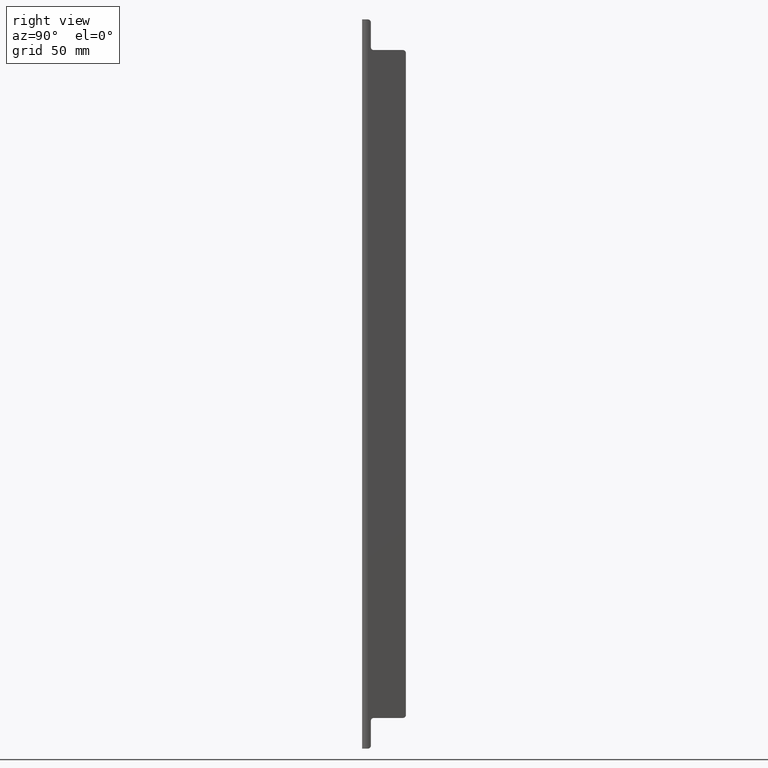
[diagram: clean part render]
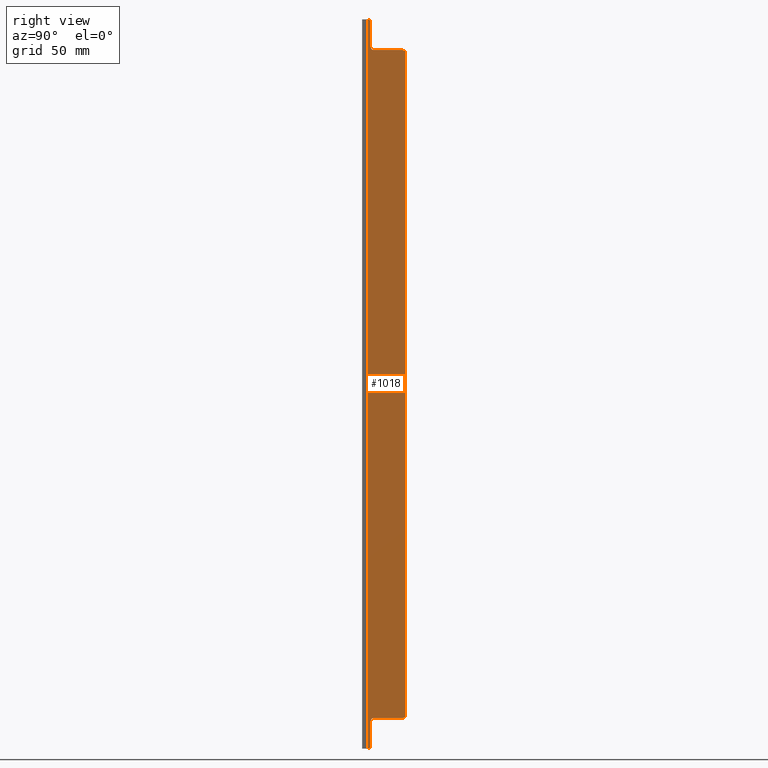
[diagram: same view with one face highlighted and labeled with its STEP entity id]
A machine part, right view. The second image highlights one B-rep face of the part: STEP entity #1018.
In plain terms, the highlighted planar face has unit normal (1, -0, 0).
Its self-contained STEP definition (entity closure, byte-faithful):
#90=LINE('',#1720,#178);
#95=LINE('',#1734,#183);
#96=LINE('',#1738,#184);
#97=LINE('',#1742,#185);
#98=LINE('',#1746,#186);
#99=LINE('',#1750,#187);
#178=VECTOR('',#1410,1000.);
#183=VECTOR('',#1429,1000.);
#184=VECTOR('',#1432,1000.);
#185=VECTOR('',#1435,1000.);
#186=VECTOR('',#1438,1000.);
#187=VECTOR('',#1441,1000.);
#219=PLANE('',#1140);
#457=ORIENTED_EDGE('',*,*,#633,.T.);
#458=ORIENTED_EDGE('',*,*,#636,.T.);
#459=ORIENTED_EDGE('',*,*,#640,.T.);
#460=ORIENTED_EDGE('',*,*,#641,.T.);
#461=ORIENTED_EDGE('',*,*,#642,.T.);
#462=ORIENTED_EDGE('',*,*,#643,.T.);
#463=ORIENTED_EDGE('',*,*,#644,.F.);
#464=ORIENTED_EDGE('',*,*,#645,.T.);
#465=ORIENTED_EDGE('',*,*,#646,.T.);
#466=ORIENTED_EDGE('',*,*,#647,.T.);
#467=ORIENTED_EDGE('',*,*,#648,.T.);
#468=ORIENTED_EDGE('',*,*,#638,.T.);
#633=EDGE_CURVE('',#741,#742,#90,.T.);
#636=EDGE_CURVE('',#742,#743,#803,.T.);
#638=EDGE_CURVE('',#744,#741,#804,.T.);
#640=EDGE_CURVE('',#743,#745,#95,.T.);
#641=EDGE_CURVE('',#745,#746,#805,.T.);
#642=EDGE_CURVE('',#746,#747,#96,.T.);
#643=EDGE_CURVE('',#747,#748,#806,.T.);
#644=EDGE_CURVE('',#749,#748,#97,.T.);
#645=EDGE_CURVE('',#749,#750,#807,.T.);
#646=EDGE_CURVE('',#750,#751,#98,.T.);
#647=EDGE_CURVE('',#751,#752,#808,.T.);
#648=EDGE_CURVE('',#752,#744,#99,.T.);
#741=VERTEX_POINT('',#1717);
#742=VERTEX_POINT('',#1719);
#743=VERTEX_POINT('',#1727);
#744=VERTEX_POINT('',#1731);
#745=VERTEX_POINT('',#1735);
#746=VERTEX_POINT('',#1737);
#747=VERTEX_POINT('',#1739);
#748=VERTEX_POINT('',#1741);
#749=VERTEX_POINT('',#1743);
#750=VERTEX_POINT('',#1745);
#751=VERTEX_POINT('',#1747);
#752=VERTEX_POINT('',#1749);
#803=CIRCLE('',#1137,2.);
#804=CIRCLE('',#1139,2.);
#805=CIRCLE('',#1141,2.);
#806=CIRCLE('',#1142,2.);
#807=CIRCLE('',#1143,2.);
#808=CIRCLE('',#1144,2.);
#865=EDGE_LOOP('',(#457,#458,#459,#460,#461,#462,#463,#464,#465,#466,#467,
#468));
#933=FACE_BOUND('',#865,.T.);
#1018=ADVANCED_FACE('',(#933),#219,.T.);
#1137=AXIS2_PLACEMENT_3D('',#1726,#1419,#1420);
#1139=AXIS2_PLACEMENT_3D('',#1730,#1424,#1425);
#1140=AXIS2_PLACEMENT_3D('',#1733,#1427,#1428);
#1141=AXIS2_PLACEMENT_3D('',#1736,#1430,#1431);
#1142=AXIS2_PLACEMENT_3D('',#1740,#1433,#1434);
#1143=AXIS2_PLACEMENT_3D('',#1744,#1436,#1437);
#1144=AXIS2_PLACEMENT_3D('',#1748,#1439,#1440);
#1410=DIRECTION('',(8.93686180177302E-17,1.31838984174237E-16,-1.));
#1419=DIRECTION('',(1.,-4.06163832661068E-16,8.93686180177302E-17));
#1420=DIRECTION('',(8.93686180177302E-17,1.66533453693773E-16,-1.));
#1424=DIRECTION('',(1.,-4.06163832661068E-16,8.93686180177302E-17));
#1425=DIRECTION('',(8.93686180177302E-17,1.66533453693773E-16,-1.));
#1427=DIRECTION('',(1.,-4.06163832661068E-16,8.93686180177302E-17));
#1428=DIRECTION('',(8.93686180177302E-17,1.66533453693773E-16,-1.));
#1429=DIRECTION('',(-8.93686180177302E-17,-1.66533453693773E-16,1.));
#1430=DIRECTION('',(-1.,4.06163832661068E-16,-8.93686180177302E-17));
#1431=DIRECTION('',(8.93686180177302E-17,1.66533453693773E-16,-1.));
#1432=DIRECTION('',(4.06163832661068E-16,1.,1.66533453693773E-16));
#1433=DIRECTION('',(1.,-4.06163832661068E-16,8.93686180177302E-17));
#1434=DIRECTION('',(8.93686180177302E-17,1.66533453693773E-16,-1.));
#1435=DIRECTION('',(8.93686180177302E-17,1.66533453693773E-16,-1.));
#1436=DIRECTION('',(1.,-4.06163832661068E-16,8.93686180177302E-17));
#1437=DIRECTION('',(8.93686180177302E-17,1.66533453693773E-16,-1.));
#1438=DIRECTION('',(-4.06163832661068E-16,-1.,-1.66533453693773E-16));
#1439=DIRECTION('',(-1.,4.06163832661068E-16,-8.93686180177302E-17));
#1440=DIRECTION('',(8.93686180177302E-17,1.66533453693773E-16,-1.));
#1441=DIRECTION('',(-8.93686180177302E-17,-4.2624633981144E-17,1.));
#1717=CARTESIAN_POINT('',(13.,-26.0000000000002,250.));
#1719=CARTESIAN_POINT('',(13.0000000000001,-26.0000000000001,-250.));
#1720=CARTESIAN_POINT('',(13.,-26.0000000000002,-2.28741647717006E-15));
#1726=CARTESIAN_POINT('',(13.0000000000001,-25.9999999999999,-248.));
#1727=CARTESIAN_POINT('',(13.0000000000001,-23.9999999999999,-248.));
#1730=CARTESIAN_POINT('',(13.,-26.0000000000002,248.));
#1731=CARTESIAN_POINT('',(13.,-24.0000000000002,248.));
#1733=CARTESIAN_POINT('',(13.,-28.5000000000002,-2.61701393760565E-15));
#1734=CARTESIAN_POINT('',(13.,-24.0000000000002,-250.));
#1735=CARTESIAN_POINT('',(13.,-24.0000000000002,-231.));
#1736=CARTESIAN_POINT('',(13.0000000000001,-21.9999999999999,-231.));
#1737=CARTESIAN_POINT('',(13.0000000000001,-21.9999999999999,-229.));
#1738=CARTESIAN_POINT('',(13.0000000000001,-5.49999999999993,-229.));
#1739=CARTESIAN_POINT('',(12.9999999999999,-2.00000000000004,-229.));
#1740=CARTESIAN_POINT('',(12.9999999999999,-2.00000000000004,-227.));
#1741=CARTESIAN_POINT('',(12.9999999999998,-2.67147415300428E-13,-227.));
#1742=CARTESIAN_POINT('',(12.9999999999998,-2.42861286636753E-13,-375.));
#1743=CARTESIAN_POINT('',(12.9999999999998,-3.22658566531686E-13,227.));
#1744=CARTESIAN_POINT('',(12.9999999999998,-2.00000000000032,227.));
#1745=CARTESIAN_POINT('',(13.,-2.00000000000032,229.));
#1746=CARTESIAN_POINT('',(13.,-5.50000000000021,229.));
#1747=CARTESIAN_POINT('',(13.,-22.0000000000002,229.));
#1748=CARTESIAN_POINT('',(13.,-22.0000000000002,231.));
#1749=CARTESIAN_POINT('',(13.,-24.0000000000002,231.));
#1750=CARTESIAN_POINT('',(13.,-24.0000000000002,375.));